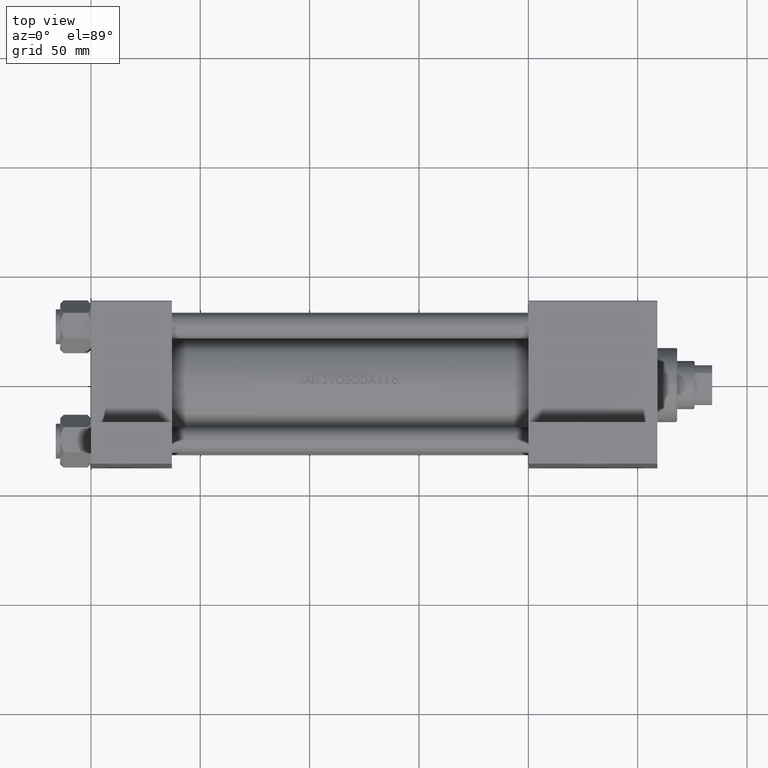
[diagram: clean part render]
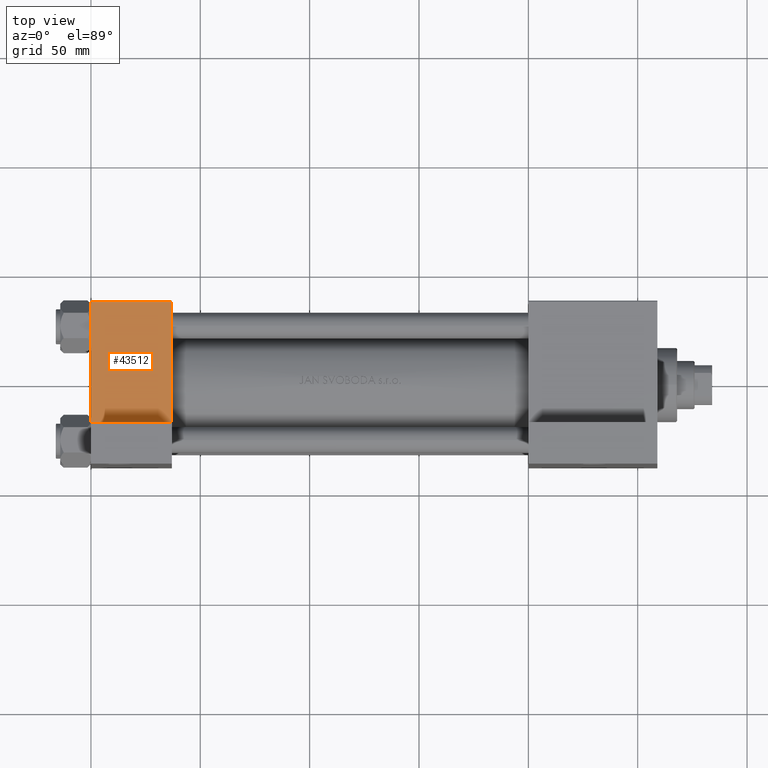
[diagram: same view with one face highlighted and labeled with its STEP entity id]
A machine part, top view. The second image highlights one B-rep face of the part: STEP entity #43512.
In plain terms, the highlighted planar face has unit normal (0, 0, -1).
Its self-contained STEP definition (entity closure, byte-faithful):
#2056 = CARTESIAN_POINT ( 'NONE',  ( 0.000000000000000000, -37.50000000000000711, 36.99999999999999289 ) ) ;
#2587 = CARTESIAN_POINT ( 'NONE',  ( 37.00000000000000000, -37.50000000000000711, 36.99999999999999289 ) ) ;
#3421 = PLANE ( 'NONE',  #41369 ) ;
#5771 = EDGE_CURVE ( 'NONE', #38178, #22446, #38641, .T. ) ;
#5969 = DIRECTION ( 'NONE',  ( -1.000000000000000000, 0.000000000000000000, 0.000000000000000000 ) ) ;
#7037 = DIRECTION ( 'NONE',  ( -0.000000000000000000, 1.000000000000000000, 9.251858538542971581E-17 ) ) ;
#7273 = DIRECTION ( 'NONE',  ( 0.000000000000000000, -9.251858538542971581E-17, 1.000000000000000000 ) ) ;
#10702 = CARTESIAN_POINT ( 'NONE',  ( 0.000000000000000000, -37.50000000000000711, 37.49999999999999289 ) ) ;
#12292 = LINE ( 'NONE', #10702, #30584 ) ;
#14739 = CARTESIAN_POINT ( 'NONE',  ( 37.00000000000000000, -37.50000000000000711, 37.49999999999999289 ) ) ;
#15097 = ORIENTED_EDGE ( 'NONE', *, *, #43820, .T. ) ;
#15843 = EDGE_CURVE ( 'NONE', #33837, #38178, #28037, .T. ) ;
#16772 = VECTOR ( 'NONE', #20108, 1000.000000000000000 ) ;
#17129 = ORIENTED_EDGE ( 'NONE', *, *, #5771, .F. ) ;
#17358 = VECTOR ( 'NONE', #34582, 1000.000000000000000 ) ;
#18381 = VECTOR ( 'NONE', #5969, 1000.000000000000000 ) ;
#19910 = CARTESIAN_POINT ( 'NONE',  ( -7.145701223179000102E-16, -37.50000000000001421, -18.49999999999999645 ) ) ;
#20108 = DIRECTION ( 'NONE',  ( 0.000000000000000000, 9.251858538542971581E-17, -1.000000000000000000 ) ) ;
#22446 = VERTEX_POINT ( 'NONE', #25721 ) ;
#24572 = ORIENTED_EDGE ( 'NONE', *, *, #42503, .T. ) ;
#24858 = FACE_OUTER_BOUND ( 'NONE', #38099, .T. ) ;
#25391 = DIRECTION ( 'NONE',  ( 0.000000000000000000, 9.251858538542971581E-17, -1.000000000000000000 ) ) ;
#25721 = CARTESIAN_POINT ( 'NONE',  ( -7.145701223179004046E-16, -37.50000000000000711, -18.50000000000000355 ) ) ;
#27676 = ORIENTED_EDGE ( 'NONE', *, *, #15843, .F. ) ;
#28037 = LINE ( 'NONE', #39576, #16772 ) ;
#29602 = VERTEX_POINT ( 'NONE', #2056 ) ;
#30584 = VECTOR ( 'NONE', #25391, 1000.000000000000000 ) ;
#31696 = LINE ( 'NONE', #2587, #18381 ) ;
#33837 = VERTEX_POINT ( 'NONE', #37482 ) ;
#34456 = CARTESIAN_POINT ( 'NONE',  ( 37.00000000000000000, -37.50000000000000000, -18.50000000000000355 ) ) ;
#34582 = DIRECTION ( 'NONE',  ( -1.000000000000000000, 0.000000000000000000, 0.000000000000000000 ) ) ;
#37482 = CARTESIAN_POINT ( 'NONE',  ( 37.00000000000000000, -37.50000000000000711, 36.99999999999999289 ) ) ;
#38099 = EDGE_LOOP ( 'NONE', ( #17129, #27676, #15097, #24572 ) ) ;
#38178 = VERTEX_POINT ( 'NONE', #34456 ) ;
#38641 = LINE ( 'NONE', #19910, #17358 ) ;
#39576 = CARTESIAN_POINT ( 'NONE',  ( 37.00000000000000000, -37.50000000000000711, 37.49999999999999289 ) ) ;
#41369 = AXIS2_PLACEMENT_3D ( 'NONE', #14739, #7037, #7273 ) ;
#42503 = EDGE_CURVE ( 'NONE', #29602, #22446, #12292, .T. ) ;
#43512 = ADVANCED_FACE ( 'NONE', ( #24858 ), #3421, .F. ) ;
#43820 = EDGE_CURVE ( 'NONE', #33837, #29602, #31696, .T. ) ;